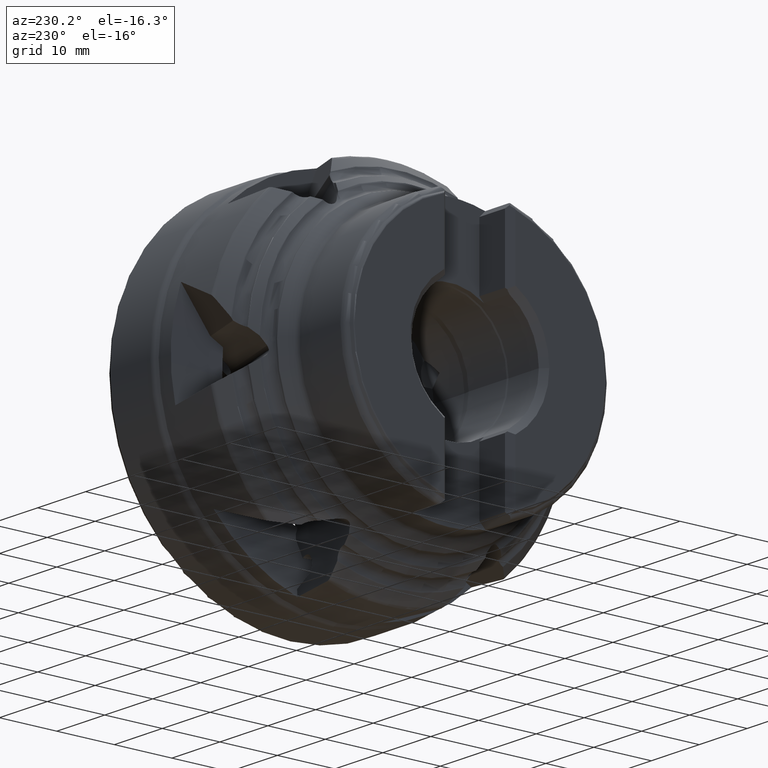
[diagram: clean part render]
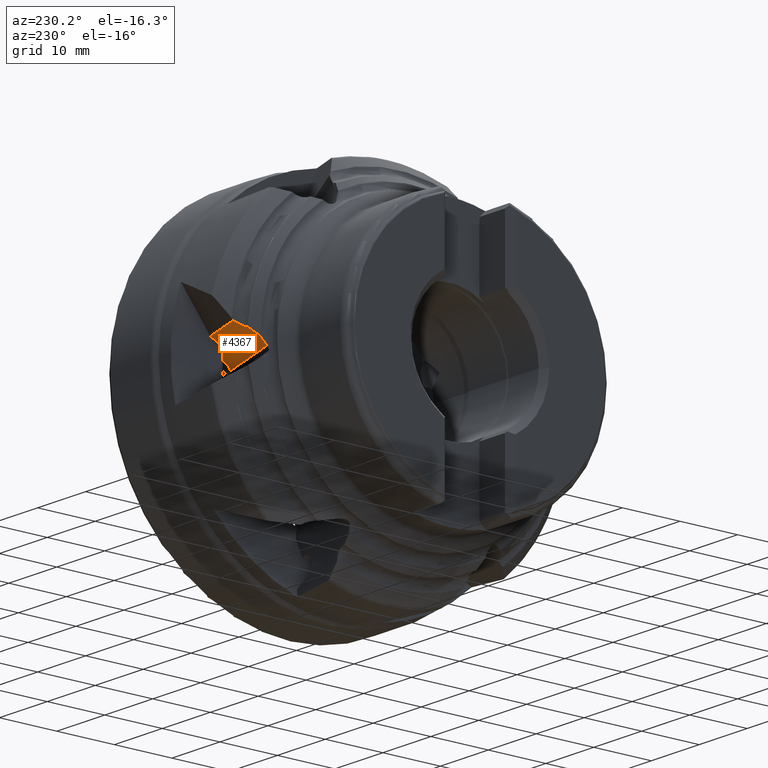
[diagram: same view with one face highlighted and labeled with its STEP entity id]
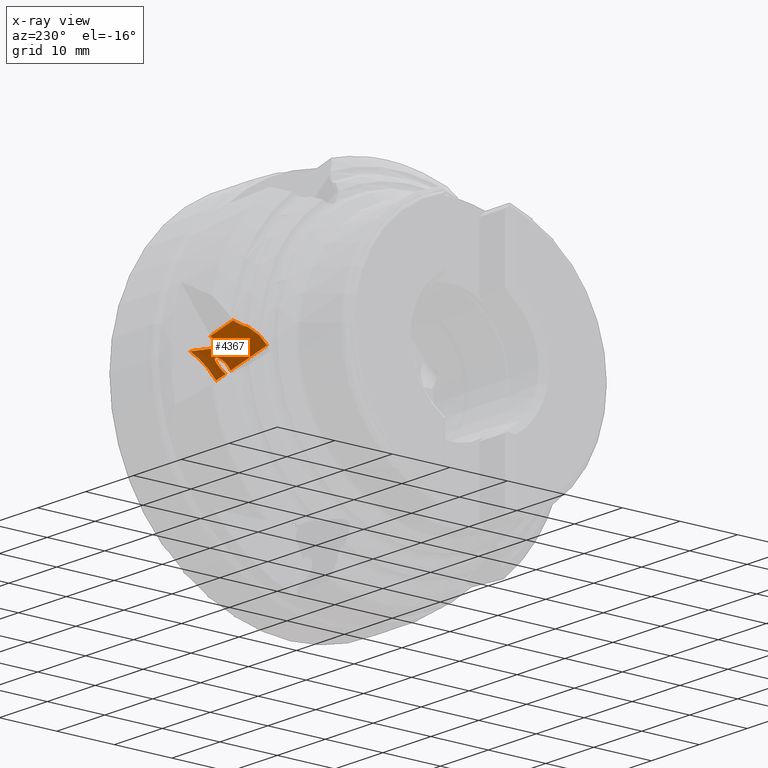
[diagram: x-ray of the same camera — body ghosted, the highlighted face saturated]
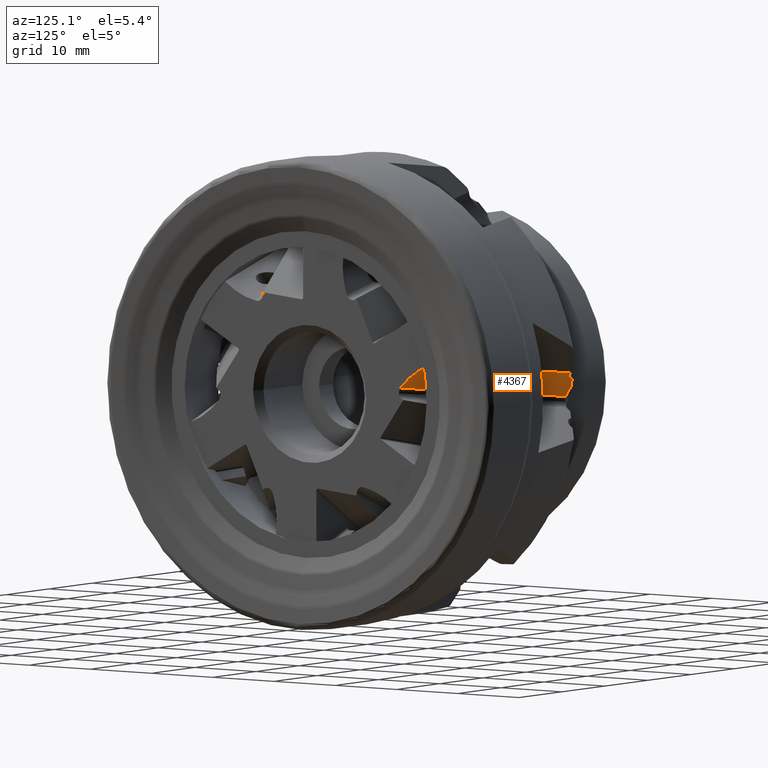
[diagram: same view with one face highlighted and labeled with its STEP entity id]
A machine part, auxiliary view. The second image highlights one B-rep face of the part: STEP entity #4367.
The next image is the same camera in x-ray: the body ghosted, the highlighted face saturated — about 10% of this face is hidden behind the body in this view.
A second angle (auxiliary view) of the same face is appended — the face is thin or edge-on in the first view.
In plain terms, the highlighted face is a freeform B-spline surface patch.
Its self-contained STEP definition (entity closure, byte-faithful):
#26 =( BOUNDED_SURFACE ( )  B_SPLINE_SURFACE ( 3, 1, ( 
 ( #8415, #8414 ),
 ( #8396, #8416 ),
 ( #8417, #8418 ),
 ( #8419, #8420 ) ),
 .UNSPECIFIED., .F., .F., .T. ) 
 B_SPLINE_SURFACE_WITH_KNOTS ( ( 4, 4 ),
 ( 2, 2 ),
 ( 0.0000000000000000000, 1.000000000000000000 ),
 ( 0.0000000000000000000, 1.000000000000000000 ),
 .UNSPECIFIED. ) 
 GEOMETRIC_REPRESENTATION_ITEM ( )  RATIONAL_B_SPLINE_SURFACE ( (
 ( 1.000000000000000000, 1.000000000000000000),
 ( 0.9739057509438021600, 0.9739057509438021600),
 ( 0.9739057509438021600, 0.9739057509438021600),
 ( 1.000000000000000000, 1.000000000000000000) ) ) 
 REPRESENTATION_ITEM ( '' )  SURFACE ( )  );
#135 = EDGE_CURVE ( 'NONE', #3238, #1889, #2920, .T. ) ;
#138 = EDGE_CURVE ( 'NONE', #3251, #3907, #2929, .T. ) ;
#148 = EDGE_CURVE ( 'NONE', #1202, #1844, #3384, .T. ) ;
#149 = EDGE_CURVE ( 'NONE', #1563, #1202, #3389, .T. ) ;
#1202 = VERTEX_POINT ( 'NONE', #11300 ) ;
#1251 = VERTEX_POINT ( 'NONE', #11349 ) ;
#1563 = VERTEX_POINT ( 'NONE', #11444 ) ;
#1844 = VERTEX_POINT ( 'NONE', #11508 ) ;
#1865 = VERTEX_POINT ( 'NONE', #11527 ) ;
#1867 = VERTEX_POINT ( 'NONE', #11529 ) ;
#1878 = VERTEX_POINT ( 'NONE', #11540 ) ;
#1889 = VERTEX_POINT ( 'NONE', #11551 ) ;
#2321 = EDGE_LOOP ( 'NONE', ( #2369, #2370, #2371, #2372, #2373, #2374, #2375, #2376, #2377, #2378, #2379, #2380, #2381, #2382, #2383 ) ) ;
#2369 = ORIENTED_EDGE ( 'NONE', *, *, #149, .T. ) ;
#2370 = ORIENTED_EDGE ( 'NONE', *, *, #148, .T. ) ;
#2371 = ORIENTED_EDGE ( 'NONE', *, *, #3661, .F. ) ;
#2372 = ORIENTED_EDGE ( 'NONE', *, *, #135, .F. ) ;
#2373 = ORIENTED_EDGE ( 'NONE', *, *, #3566, .T. ) ;
#2374 = ORIENTED_EDGE ( 'NONE', *, *, #6926, .T. ) ;
#2375 = ORIENTED_EDGE ( 'NONE', *, *, #3552, .T. ) ;
#2376 = ORIENTED_EDGE ( 'NONE', *, *, #138, .F. ) ;
#2377 = ORIENTED_EDGE ( 'NONE', *, *, #7985, .T. ) ;
#2378 = ORIENTED_EDGE ( 'NONE', *, *, #6439, .T. ) ;
#2379 = ORIENTED_EDGE ( 'NONE', *, *, #6436, .T. ) ;
#2380 = ORIENTED_EDGE ( 'NONE', *, *, #6432, .T. ) ;
#2381 = ORIENTED_EDGE ( 'NONE', *, *, #6421, .T. ) ;
#2382 = ORIENTED_EDGE ( 'NONE', *, *, #7938, .T. ) ;
#2383 = ORIENTED_EDGE ( 'NONE', *, *, #3702, .F. ) ;
#2920 = LINE ( 'NONE', #10556, #2925 ) ;
#2925 = VECTOR ( 'NONE', #10579, 1000.000000000000100 ) ;
#2929 = LINE ( 'NONE', #10593, #2930 ) ;
#2930 = VECTOR ( 'NONE', #10595, 1000.000000000000100 ) ;
#3215 = VERTEX_POINT ( 'NONE', #11568 ) ;
#3238 = VERTEX_POINT ( 'NONE', #11590 ) ;
#3251 = VERTEX_POINT ( 'NONE', #11603 ) ;
#3314 = VERTEX_POINT ( 'NONE', #11666 ) ;
#3333 = VERTEX_POINT ( 'NONE', #11685 ) ;
#3384 = B_SPLINE_CURVE_WITH_KNOTS ( 'NONE', 3,
 ( #10653, #10660, #10661, #10662, #10664, #10666 ),
 .UNSPECIFIED., .F., .F.,
 ( 4, 2, 4 ),
 ( 1.788112030672749000E-018, 0.005042551136569462500, 0.01008510227313892300 ),
 .UNSPECIFIED. ) ;
#3389 = B_SPLINE_CURVE_WITH_KNOTS ( 'NONE', 3,
 ( #10646, #10670, #10672, #10674 ),
 .UNSPECIFIED., .F., .F.,
 ( 4, 4 ),
 ( 0.0000000000000000000, 0.002538169568664497300 ),
 .UNSPECIFIED. ) ;
#3422 = B_SPLINE_CURVE_WITH_KNOTS ( 'NONE', 3,
 ( #11924, #11941, #11942, #11943, #11944, #11945, #11946, #11947, #11948, #11949 ),
 .UNSPECIFIED., .F., .F.,
 ( 4, 2, 2, 2, 4 ),
 ( 0.005652344278587246300, 0.005996065005494274400, 0.006339785732401301600, 0.006683506459308329700, 0.007027227186215357800 ),
 .UNSPECIFIED. ) ;
#3424 = B_SPLINE_CURVE_WITH_KNOTS ( 'NONE', 3,
 ( #11980, #11987, #11988, #11989, #11990, #11991 ),
 .UNSPECIFIED., .F., .F.,
 ( 4, 2, 4 ),
 ( 0.0000000000000000000, 0.0003573918078944300500, 0.0007147836157888600900 ),
 .UNSPECIFIED. ) ;
#3441 = B_SPLINE_CURVE_WITH_KNOTS ( 'NONE', 3,
 ( #4644, #4656, #4657, #4658, #4659, #4660, #4661, #4662, #4663, #4664 ),
 .UNSPECIFIED., .F., .F.,
 ( 4, 2, 2, 2, 4 ),
 ( 2.776912483567713300E-018, 0.001408733430189748300, 0.002817466860379493600, 0.004226200290569239100, 0.005634933720758984600 ),
 .UNSPECIFIED. ) ;
#3552 = EDGE_CURVE ( 'NONE', #3333, #3907, #3422, .T. ) ;
#3566 = EDGE_CURVE ( 'NONE', #3238, #1251, #3424, .T. ) ;
#3661 = EDGE_CURVE ( 'NONE', #1889, #1844, #3441, .T. ) ;
#3702 = EDGE_CURVE ( 'NONE', #1563, #4036, #5816, .T. ) ;
#3907 = VERTEX_POINT ( 'NONE', #5304 ) ;
#4036 = VERTEX_POINT ( 'NONE', #5395 ) ;
#4367 = ADVANCED_FACE ( 'NONE', ( #6272 ), #26, .F. ) ;
#4644 = CARTESIAN_POINT ( 'NONE',  ( -0.9999999999999974500, 14.80375997692608400, 1.577761637140233900 ) ) ;
#4656 = CARTESIAN_POINT ( 'NONE',  ( -0.9999999999999972200, 15.10508272146743300, 1.940113073243516100 ) ) ;
#4657 = CARTESIAN_POINT ( 'NONE',  ( -1.000000000000002400, 15.42906337003896400, 2.280120181224662500 ) ) ;
#4658 = CARTESIAN_POINT ( 'NONE',  ( -1.000000000000001800, 16.12107258717595200, 2.916696081968928500 ) ) ;
#4659 = CARTESIAN_POINT ( 'NONE',  ( -0.9999999999999970000, 16.48873052061928500, 3.212558849052081100 ) ) ;
#4660 = CARTESIAN_POINT ( 'NONE',  ( -0.9999999999999967800, 17.25717631759115600, 3.752778556807964300 ) ) ;
#4661 = CARTESIAN_POINT ( 'NONE',  ( -0.9999999999999970000, 17.66082733812803300, 3.998973838544411100 ) ) ;
#4662 = CARTESIAN_POINT ( 'NONE',  ( -0.9999999999999972200, 18.49044024545115400, 4.434719188986988100 ) ) ;
#4663 = CARTESIAN_POINT ( 'NONE',  ( -1.000000000000001800, 18.91741013145620100, 4.625248196259526900 ) ) ;
#4664 = CARTESIAN_POINT ( 'NONE',  ( -0.9999999999996478400, 19.35647994519470000, 4.788576295366995700 ) ) ;
#4819 = CARTESIAN_POINT ( 'NONE',  ( -27.53668891266576000, 31.54013477299120900, 2.192072300539166500 ) ) ;
#4820 = DIRECTION ( 'NONE',  ( -0.9068635686480307500, 0.4115991691797471500, -0.09046873376752909100 ) ) ;
#5304 = CARTESIAN_POINT ( 'NONE',  ( -7.564661091777448800, 17.78326995476146500, 0.9228708717393663300 ) ) ;
#5395 = CARTESIAN_POINT ( 'NONE',  ( -21.11050798975559000, 28.62347694229701000, 2.833148280604666200 ) ) ;
#5816 = LINE ( 'NONE', #4819, #5823 ) ;
#5823 = VECTOR ( 'NONE', #4820, 1000.000000000000100 ) ;
#6272 = FACE_OUTER_BOUND ( 'NONE', #2321, .T. ) ;
#6421 = EDGE_CURVE ( 'NONE', #1867, #3215, #8046, .T. ) ;
#6432 = EDGE_CURVE ( 'NONE', #1865, #1867, #8047, .T. ) ;
#6436 = EDGE_CURVE ( 'NONE', #1878, #1865, #8048, .T. ) ;
#6439 = EDGE_CURVE ( 'NONE', #3314, #1878, #8049, .T. ) ;
#6926 = EDGE_CURVE ( 'NONE', #1251, #3333, #8141, .T. ) ;
#7938 = EDGE_CURVE ( 'NONE', #3215, #4036, #12238, .T. ) ;
#7985 = EDGE_CURVE ( 'NONE', #3251, #3314, #12256, .T. ) ;
#8046 = B_SPLINE_CURVE_WITH_KNOTS ( 'NONE', 3,
 ( #8710, #8724, #8725, #8726 ),
 .UNSPECIFIED., .F., .F.,
 ( 4, 4 ),
 ( 3.576224061345498000E-018, 0.0001364347269612748400 ),
 .UNSPECIFIED. ) ;
#8047 = B_SPLINE_CURVE_WITH_KNOTS ( 'NONE', 3,
 ( #8735, #8744, #8745, #8746 ),
 .UNSPECIFIED., .F., .F.,
 ( 4, 4 ),
 ( 5.658662926557750100E-018, 0.0001837542891573828000 ),
 .UNSPECIFIED. ) ;
#8048 = B_SPLINE_CURVE_WITH_KNOTS ( 'NONE', 3,
 ( #8748, #8751, #8752, #8753 ),
 .UNSPECIFIED., .F., .F.,
 ( 4, 4 ),
 ( 0.0000000000000000000, 0.001869208965817963000 ),
 .UNSPECIFIED. ) ;
#8049 = B_SPLINE_CURVE_WITH_KNOTS ( 'NONE', 3,
 ( #8755, #8759, #8760, #8761 ),
 .UNSPECIFIED., .F., .F.,
 ( 4, 4 ),
 ( 0.0000000000000000000, 0.0002268814462102547900 ),
 .UNSPECIFIED. ) ;
#8141 = B_SPLINE_CURVE_WITH_KNOTS ( 'NONE', 3,
 ( #9879, #9906, #9907, #9908, #9909, #9910, #9911, #9912, #9913, #9914, #9915, #9916, #9917, #9918, #9919, #9920, #9921, #9922, #9923, #9924, #9925, #9926 ),
 .UNSPECIFIED., .F., .F.,
 ( 4, 2, 2, 2, 2, 2, 2, 2, 2, 2, 4 ),
 ( 0.0007147836157888600900, 0.001023381157213757500, 0.001331978698638654700, 0.001949173781488448600, 0.002566368864338242800, 0.002874966405763143200, 0.003183563947188044100, 0.003492161488612944500, 0.003800759030037844900, 0.004417954112887645400, 0.005652344278587246300 ),
 .UNSPECIFIED. ) ;
#8396 = CARTESIAN_POINT ( 'NONE',  ( -23.99643870086890400, 28.08182664900313300, 1.884735582606689200 ) ) ;
#8414 = CARTESIAN_POINT ( 'NONE',  ( -0.1472051273436539300, 19.10883952633414000, 4.924447932629503200 ) ) ;
#8415 = CARTESIAN_POINT ( 'NONE',  ( -23.79001860574311100, 29.83962938405071300, 2.565840230170539600 ) ) ;
#8416 = CARTESIAN_POINT ( 'NONE',  ( -0.3536252224694468300, 17.35103679128656400, 4.243343285065654100 ) ) ;
#8417 = CARTESIAN_POINT ( 'NONE',  ( -24.24034323629134100, 26.58657558426859400, 0.7440699510756394500 ) ) ;
#8418 = CARTESIAN_POINT ( 'NONE',  ( -0.5975297578918853400, 15.85578572655202300, 3.102677653534603700 ) ) ;
#8419 = CARTESIAN_POINT ( 'NONE',  ( -24.50263869493067800, 25.47092855090126000, -0.7668622251855647900 ) ) ;
#8420 = CARTESIAN_POINT ( 'NONE',  ( -0.8598252165312215700, 14.74013869318468700, 1.591745477273399400 ) ) ;
#8710 = CARTESIAN_POINT ( 'NONE',  ( -22.71274918744552100, 27.49992657022843500, 1.812191039644266000 ) ) ;
#8724 = CARTESIAN_POINT ( 'NONE',  ( -22.66874424224112900, 27.49519512327786000, 1.825481301604591200 ) ) ;
#8725 = CARTESIAN_POINT ( 'NONE',  ( -22.62521162350527200, 27.49239270820992300, 1.839676555957334300 ) ) ;
#8726 = CARTESIAN_POINT ( 'NONE',  ( -22.58210432144556300, 27.49138062658097700, 1.854678359983461800 ) ) ;
#8735 = CARTESIAN_POINT ( 'NONE',  ( -22.86511904234956900, 27.45357524688129700, 1.728583942403774300 ) ) ;
#8744 = CARTESIAN_POINT ( 'NONE',  ( -22.82609359412876100, 27.48714061440911400, 1.763271978921357600 ) ) ;
#8745 = CARTESIAN_POINT ( 'NONE',  ( -22.77206908808990000, 27.50630469345321300, 1.794275393678519800 ) ) ;
#8746 = CARTESIAN_POINT ( 'NONE',  ( -22.71274918744552100, 27.49992657022843500, 1.812191039644266000 ) ) ;
#8748 = CARTESIAN_POINT ( 'NONE',  ( -23.96923507402113500, 26.49245854865559100, 0.5662050717717406200 ) ) ;
#8751 = CARTESIAN_POINT ( 'NONE',  ( -23.62732346967218100, 26.79601226483513400, 0.9923886245496201800 ) ) ;
#8752 = CARTESIAN_POINT ( 'NONE',  ( -23.25805656407837000, 27.11561391822027300, 1.379318739202605200 ) ) ;
#8753 = CARTESIAN_POINT ( 'NONE',  ( -22.86511904234956900, 27.45357524688129700, 1.728583942403774300 ) ) ;
#8755 = CARTESIAN_POINT ( 'NONE',  ( -24.03428399164215500, 26.34820802615644200, 0.4079285610064735100 ) ) ;
#8759 = CARTESIAN_POINT ( 'NONE',  ( -24.03414942661777700, 26.40517695028878700, 0.4588492747089804600 ) ) ;
#8760 = CARTESIAN_POINT ( 'NONE',  ( -24.01102601119750400, 26.45535599313785700, 0.5141138006560469500 ) ) ;
#8761 = CARTESIAN_POINT ( 'NONE',  ( -23.96923507402113500, 26.49245854865559100, 0.5662050717717406200 ) ) ;
#9879 = CARTESIAN_POINT ( 'NONE',  ( -4.926978664772300400, 17.00846806159965400, 1.663616091125869100 ) ) ;
#9906 = CARTESIAN_POINT ( 'NONE',  ( -4.880342960068465400, 17.05660025412360900, 1.742005330289161800 ) ) ;
#9907 = CARTESIAN_POINT ( 'NONE',  ( -4.841205025304988800, 17.11068866739829300, 1.820241924685907800 ) ) ;
#9908 = CARTESIAN_POINT ( 'NONE',  ( -4.778153116333163200, 17.23124150172974100, 1.976213889210925100 ) ) ;
#9909 = CARTESIAN_POINT ( 'NONE',  ( -4.754508002503615500, 17.29778007093882100, 2.053808330522951300 ) ) ;
#9910 = CARTESIAN_POINT ( 'NONE',  ( -4.710388533225036600, 17.50781338865365600, 2.275607414222508700 ) ) ;
#9911 = CARTESIAN_POINT ( 'NONE',  ( -4.715723921741488100, 17.66804588837327100, 2.415002327269504300 ) ) ;
#9912 = CARTESIAN_POINT ( 'NONE',  ( -4.802200358416779800, 17.99494344820247000, 2.648716884401877400 ) ) ;
#9913 = CARTESIAN_POINT ( 'NONE',  ( -4.884775744785935500, 18.16544307943480500, 2.745782194024041000 ) ) ;
#9914 = CARTESIAN_POINT ( 'NONE',  ( -5.061348867062420700, 18.39908823156232700, 2.846064468812181700 ) ) ;
#9915 = CARTESIAN_POINT ( 'NONE',  ( -5.130098283839425100, 18.47472049919778300, 2.872597027102362000 ) ) ;
#9916 = CARTESIAN_POINT ( 'NONE',  ( -5.279637035499401800, 18.61196824353598700, 2.909316107268468800 ) ) ;
#9917 = CARTESIAN_POINT ( 'NONE',  ( -5.361484941388885000, 18.67491507121548700, 2.920050555648620700 ) ) ;
#9918 = CARTESIAN_POINT ( 'NONE',  ( -5.537126699268825700, 18.78726606538296600, 2.926372875814624600 ) ) ;
#9919 = CARTESIAN_POINT ( 'NONE',  ( -5.628483737979465200, 18.83522188294393400, 2.921957469151566000 ) ) ;
#9920 = CARTESIAN_POINT ( 'NONE',  ( -5.817707083374985500, 18.91603301983887400, 2.899392514547070900 ) ) ;
#9921 = CARTESIAN_POINT ( 'NONE',  ( -5.915949767161948500, 18.94878905757378000, 2.881003393437240800 ) ) ;
#9922 = CARTESIAN_POINT ( 'NONE',  ( -6.208201780762617100, 19.02210500932335400, 2.808352292773757900 ) ) ;
#9923 = CARTESIAN_POINT ( 'NONE',  ( -6.405884257909558100, 19.03950948339631900, 2.735316805870999800 ) ) ;
#9924 = CARTESIAN_POINT ( 'NONE',  ( -6.960838516948293800, 19.00922500857550200, 2.462575701221400700 ) ) ;
#9925 = CARTESIAN_POINT ( 'NONE',  ( -7.291624332084374800, 18.87919246518961500, 2.202420024828056100 ) ) ;
#9926 = CARTESIAN_POINT ( 'NONE',  ( -7.490558868444384000, 18.67387434112354700, 1.907347888881727000 ) ) ;
#10556 = CARTESIAN_POINT ( 'NONE',  ( -28.24930900185332300, 27.17143393984175100, -1.140630154816945100 ) ) ;
#10579 = DIRECTION ( 'NONE',  ( 0.9068635686480307500, -0.4115991691797471500, 0.09046873376752909100 ) ) ;
#10593 = CARTESIAN_POINT ( 'NONE',  ( -28.24930900185332300, 27.17143393984175100, -1.140630154816945100 ) ) ;
#10595 = DIRECTION ( 'NONE',  ( 0.9068635686480307500, -0.4115991691797471500, 0.09046873376752909100 ) ) ;
#10646 = CARTESIAN_POINT ( 'NONE',  ( -10.72986325296337500, 23.91200225423168000, 3.868721676091508900 ) ) ;
#10653 = CARTESIAN_POINT ( 'NONE',  ( -10.61996486731406700, 21.62181110485962400, 2.780029064072805600 ) ) ;
#10660 = CARTESIAN_POINT ( 'NONE',  ( -9.024611579434854000, 21.26046615605968500, 3.171875516829629800 ) ) ;
#10661 = CARTESIAN_POINT ( 'NONE',  ( -7.424446033932945000, 20.88964385665321200, 3.529618679372142700 ) ) ;
#10662 = CARTESIAN_POINT ( 'NONE',  ( -4.217125219122642000, 20.13346039613512800, 4.194687719719740700 ) ) ;
#10664 = CARTESIAN_POINT ( 'NONE',  ( -2.609940636296748100, 19.74804889742488000, 4.501814301340837200 ) ) ;
#10666 = CARTESIAN_POINT ( 'NONE',  ( -0.9999999999996478400, 19.35647994519470000, 4.788576295366995700 ) ) ;
#10670 = CARTESIAN_POINT ( 'NONE',  ( -10.69185236693504300, 23.10781199797583000, 3.591776490520932200 ) ) ;
#10672 = CARTESIAN_POINT ( 'NONE',  ( -10.65505470156671400, 22.34406541030816500, 3.229630889500873600 ) ) ;
#10674 = CARTESIAN_POINT ( 'NONE',  ( -10.61996486731406700, 21.62181110485962400, 2.780029064072805600 ) ) ;
#10774 = CARTESIAN_POINT ( 'NONE',  ( -22.58210432144556300, 27.49138062658097700, 1.854678359983461800 ) ) ;
#10780 = CARTESIAN_POINT ( 'NONE',  ( -22.22922288504490100, 27.48309560752547000, 1.977484889280994600 ) ) ;
#10782 = CARTESIAN_POINT ( 'NONE',  ( -21.89590148944478900, 27.59437190760093400, 2.156772187355993500 ) ) ;
#10784 = CARTESIAN_POINT ( 'NONE',  ( -21.50377139017066200, 27.89257107199855700, 2.424598044809750600 ) ) ;
#10786 = CARTESIAN_POINT ( 'NONE',  ( -21.39043425138453700, 28.01405298383076200, 2.514162850540842400 ) ) ;
#10788 = CARTESIAN_POINT ( 'NONE',  ( -21.21046717395697500, 28.29557409191748000, 2.684244327263936900 ) ) ;
#10790 = CARTESIAN_POINT ( 'NONE',  ( -21.14560938156541800, 28.45178033549479600, 2.762710963475885100 ) ) ;
#10792 = CARTESIAN_POINT ( 'NONE',  ( -21.11050798975559000, 28.62347694229701000, 2.833148280604666200 ) ) ;
#11148 = CARTESIAN_POINT ( 'NONE',  ( -24.36246391146190900, 25.40730726715985100, -0.7528783850524180000 ) ) ;
#11172 = CARTESIAN_POINT ( 'NONE',  ( -24.26913403865445700, 25.53032068385074300, -0.5447006357091481700 ) ) ;
#11174 = CARTESIAN_POINT ( 'NONE',  ( -24.18998163035903900, 25.66773737981973700, -0.3433312753949766000 ) ) ;
#11175 = CARTESIAN_POINT ( 'NONE',  ( -24.10241852268849500, 25.90050472895576000, -0.05233495572890960900 ) ) ;
#11176 = CARTESIAN_POINT ( 'NONE',  ( -24.07849323805235300, 25.98257010193662000, 0.04281412182947582500 ) ) ;
#11178 = CARTESIAN_POINT ( 'NONE',  ( -24.04453471512598700, 26.15737130638454400, 0.2291219127245115500 ) ) ;
#11180 = CARTESIAN_POINT ( 'NONE',  ( -24.03451419232844800, 26.25075116092207100, 0.3208183828081535000 ) ) ;
#11182 = CARTESIAN_POINT ( 'NONE',  ( -24.03428399164215500, 26.34820802615644200, 0.4079285610064735100 ) ) ;
#11300 = CARTESIAN_POINT ( 'NONE',  ( -10.61996486731406700, 21.62181110485962400, 2.780029064072805600 ) ) ;
#11349 = CARTESIAN_POINT ( 'NONE',  ( -4.926978664772300400, 17.00846806159965400, 1.663616091125869100 ) ) ;
#11444 = CARTESIAN_POINT ( 'NONE',  ( -10.72986325296337500, 23.91200225423168000, 3.868721676091508900 ) ) ;
#11508 = CARTESIAN_POINT ( 'NONE',  ( -0.9999999999996478400, 19.35647994519470000, 4.788576295366995700 ) ) ;
#11527 = CARTESIAN_POINT ( 'NONE',  ( -22.86511904234956900, 27.45357524688129700, 1.728583942403774300 ) ) ;
#11529 = CARTESIAN_POINT ( 'NONE',  ( -22.71274918744552100, 27.49992657022843500, 1.812191039644266000 ) ) ;
#11540 = CARTESIAN_POINT ( 'NONE',  ( -23.96923507402113500, 26.49245854865559100, 0.5662050717717406200 ) ) ;
#11551 = CARTESIAN_POINT ( 'NONE',  ( -0.9999999999999974500, 14.80375997692608400, 1.577761637140233900 ) ) ;
#11568 = CARTESIAN_POINT ( 'NONE',  ( -22.58210432144556300, 27.49138062658097700, 1.854678359983461800 ) ) ;
#11590 = CARTESIAN_POINT ( 'NONE',  ( -5.358354266256599300, 16.78189103985609200, 1.142972099430207500 ) ) ;
#11603 = CARTESIAN_POINT ( 'NONE',  ( -24.36246391146190900, 25.40730726715985100, -0.7528783850524180000 ) ) ;
#11666 = CARTESIAN_POINT ( 'NONE',  ( -24.03428399164215500, 26.34820802615644200, 0.4079285610064735100 ) ) ;
#11685 = CARTESIAN_POINT ( 'NONE',  ( -7.490558868444384000, 18.67387434112354700, 1.907347888881727000 ) ) ;
#11924 = CARTESIAN_POINT ( 'NONE',  ( -7.490558868444384000, 18.67387434112354700, 1.907347888881727000 ) ) ;
#11941 = CARTESIAN_POINT ( 'NONE',  ( -7.545952961288457500, 18.61670271353594300, 1.825183908743405200 ) ) ;
#11942 = CARTESIAN_POINT ( 'NONE',  ( -7.592116129557247500, 18.55238393037516800, 1.738668123559628400 ) ) ;
#11943 = CARTESIAN_POINT ( 'NONE',  ( -7.658602666656022100, 18.41548512469694300, 1.565943297923523500 ) ) ;
#11944 = CARTESIAN_POINT ( 'NONE',  ( -7.679323119684269700, 18.34316799848368600, 1.479871878970841800 ) ) ;
#11945 = CARTESIAN_POINT ( 'NONE',  ( -7.693999109005988900, 18.18998492567649800, 1.308588954791293000 ) ) ;
#11946 = CARTESIAN_POINT ( 'NONE',  ( -7.687381578274664000, 18.10906817926540300, 1.223547886760593300 ) ) ;
#11947 = CARTESIAN_POINT ( 'NONE',  ( -7.646628420657069800, 17.94768472539865200, 1.065628471369370400 ) ) ;
#11948 = CARTESIAN_POINT ( 'NONE',  ( -7.612286609590600300, 17.86527933894095100, 0.9907451498460820800 ) ) ;
#11949 = CARTESIAN_POINT ( 'NONE',  ( -7.564661091777448800, 17.78326995476146500, 0.9228708717393663300 ) ) ;
#11980 = CARTESIAN_POINT ( 'NONE',  ( -5.358354266256599300, 16.78189103985609200, 1.142972099430207500 ) ) ;
#11987 = CARTESIAN_POINT ( 'NONE',  ( -5.269915033025948300, 16.80101338897040700, 1.223059920573136500 ) ) ;
#11988 = CARTESIAN_POINT ( 'NONE',  ( -5.189925175448974100, 16.82942777808300100, 1.306946635975740700 ) ) ;
#11989 = CARTESIAN_POINT ( 'NONE',  ( -5.045715346021210300, 16.90490563757255100, 1.481295465143214400 ) ) ;
#11990 = CARTESIAN_POINT ( 'NONE',  ( -4.980988229267114600, 16.95272539033716100, 1.572832244389161600 ) ) ;
#11991 = CARTESIAN_POINT ( 'NONE',  ( -4.926978664772300400, 17.00846806159965400, 1.663616091125869100 ) ) ;
#12238 = B_SPLINE_CURVE_WITH_KNOTS ( 'NONE', 3,
 ( #10774, #10780, #10782, #10784, #10786, #10788, #10790, #10792 ),
 .UNSPECIFIED., .F., .F.,
 ( 4, 2, 2, 4 ),
 ( 0.0001364347269612748400, 0.001253305422287564000, 0.001811740769950708500, 0.002370176117613853400 ),
 .UNSPECIFIED. ) ;
#12256 = B_SPLINE_CURVE_WITH_KNOTS ( 'NONE', 3,
 ( #11148, #11172, #11174, #11175, #11176, #11178, #11180, #11182 ),
 .UNSPECIFIED., .F., .F.,
 ( 4, 2, 2, 4 ),
 ( 2.168404344971008900E-018, 0.0007654783298572443800, 0.001148217494785864200, 0.001530956659714484200 ),
 .UNSPECIFIED. ) ;